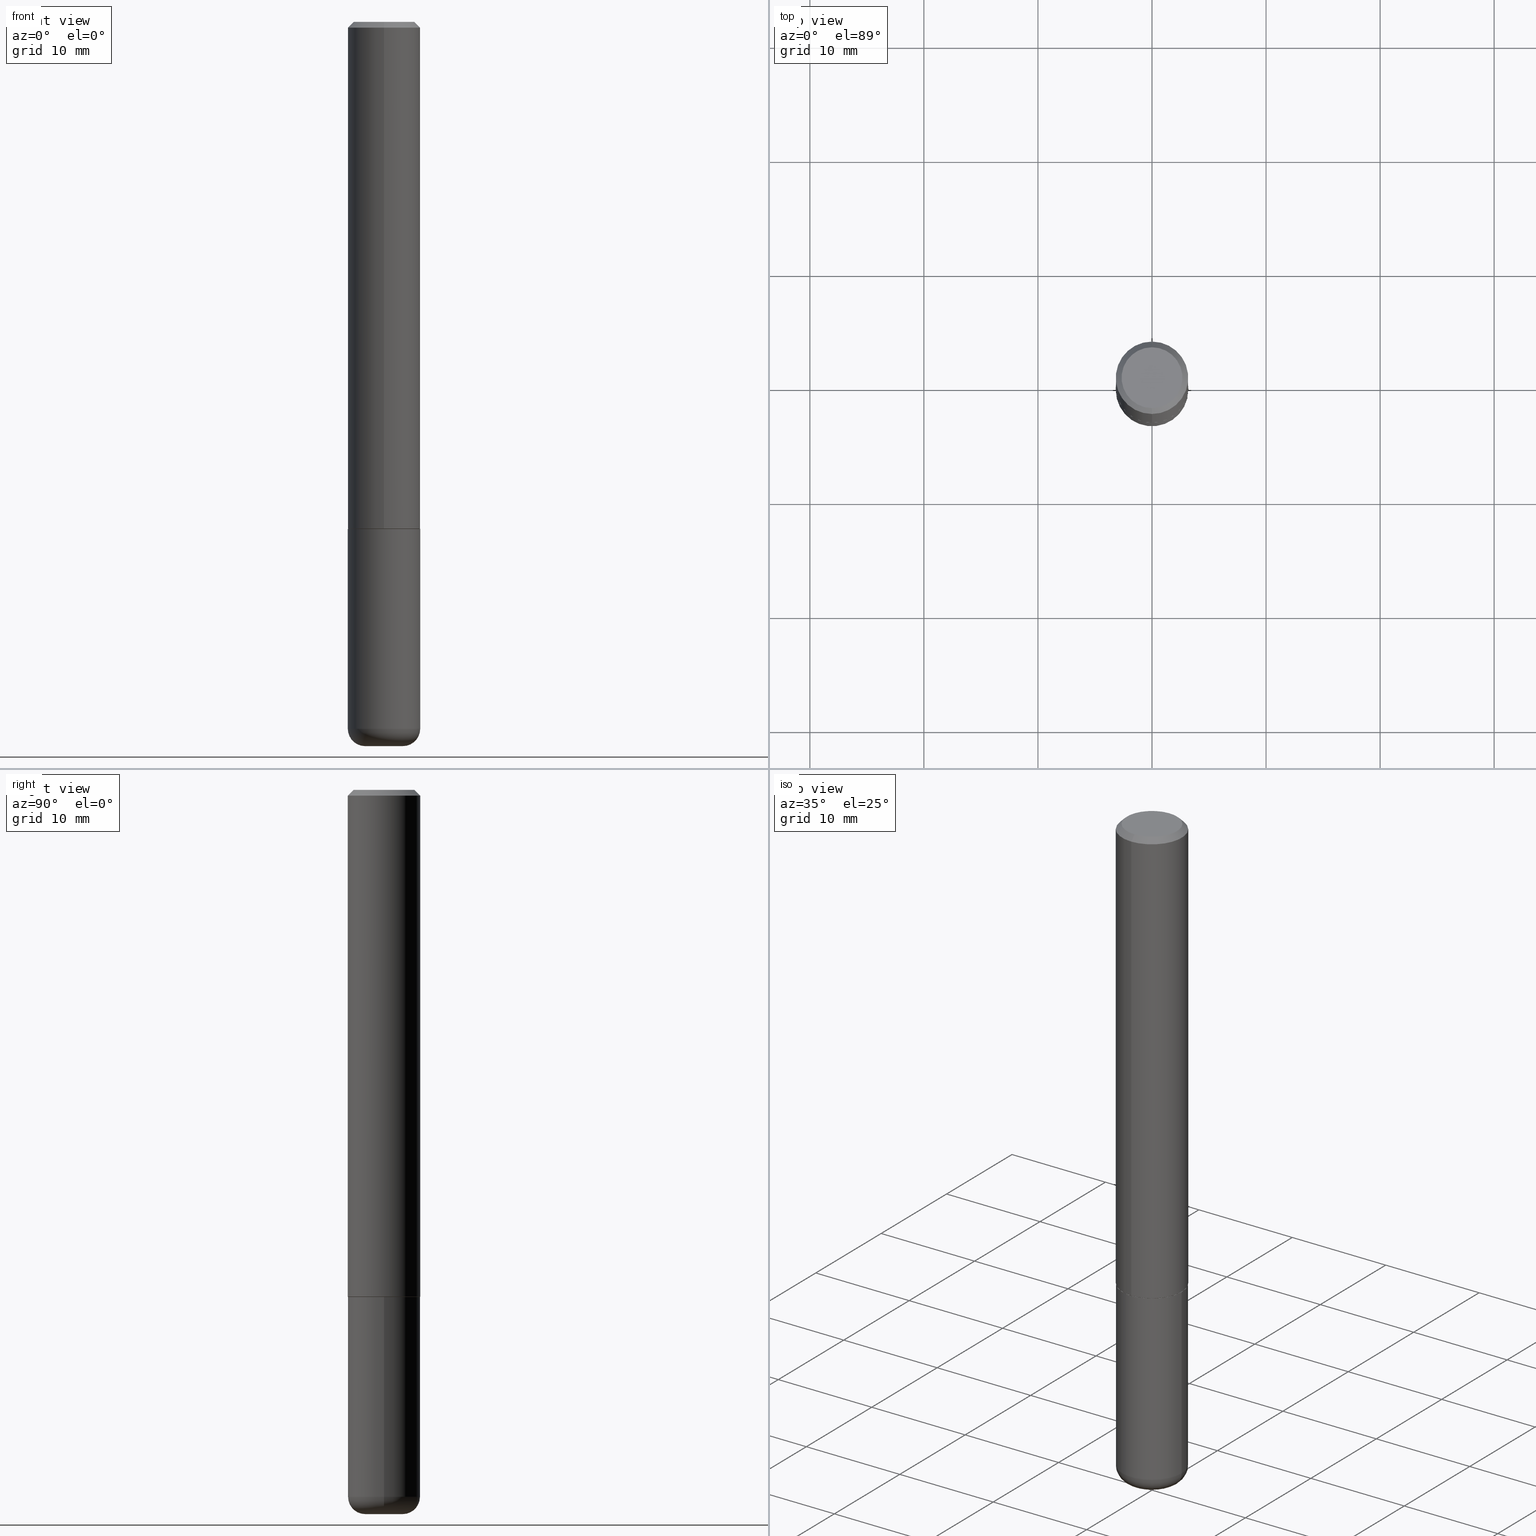
[diagram: canonical four-view strip — front | top / right | iso, engineering-drawing reading convention]
A machine part, canonical four-view strip (front | top / right | iso — engineering-drawing reading convention). The complete STEP part file that produces these views, byte-faithful:
ISO-10303-21;
HEADER;
FILE_DESCRIPTION (( 'STEP AP203' ),
    '1' );
FILE_NAME ('37438.STEP',
    '2024-03-02T01:25:38',
    ( '' ),
    ( '' ),
    'SwSTEP 2.0',
    'SolidWorks 2023',
    '' );
FILE_SCHEMA (( 'CONFIG_CONTROL_DESIGN' ));
ENDSEC;

DATA;
#1 = EDGE_LOOP ( 'NONE', ( #406, #387, #70, #188 ) ) ;
#2 = DIRECTION ( 'NONE',  ( 1.000000000000000000, 0.000000000000000000, 0.000000000000000000 ) ) ;
#3 = DIRECTION ( 'NONE',  ( -2.444769625519019670E-29, 3.492482605351917386E-15, 1.000000000000000000 ) ) ;
#4 = EDGE_LOOP ( 'NONE', ( #320, #88, #154, #69 ) ) ;
#5 =( NAMED_UNIT ( * ) PLANE_ANGLE_UNIT ( ) SI_UNIT ( $, .RADIAN. ) );
#6 = EDGE_CURVE ( 'NONE', #348, #399, #46, .T. ) ;
#7 = FACE_OUTER_BOUND ( 'NONE', #1, .T. ) ;
#8 = DIRECTION ( 'NONE',  ( -6.982962677686265922E-15, -1.000000000000000000, 4.406206441393973340E-15 ) ) ;
#9 = CONICAL_SURFACE ( 'NONE', #66, 0.1250000000000000000, 0.7853981633974471688 ) ;
#10 = ORIENTED_EDGE ( 'NONE', *, *, #151, .T. ) ;
#11 = FACE_OUTER_BOUND ( 'NONE', #130, .T. ) ;
#12 = ORIENTED_EDGE ( 'NONE', *, *, #404, .F. ) ;
#13 = LINE ( 'NONE', #262, #315 ) ;
#14 = ORIENTED_EDGE ( 'NONE', *, *, #151, .F. ) ;
#15 = ORIENTED_EDGE ( 'NONE', *, *, #321, .T. ) ;
#16 = AXIS2_PLACEMENT_3D ( 'NONE', #168, #34, #253 ) ;
#17 = DIRECTION ( 'NONE',  ( 2.444769625519019670E-29, -3.492482605351917386E-15, -1.000000000000000000 ) ) ;
#18 = ADVANCED_FACE ( 'NONE', ( #51 ), #153, .T. ) ;
#19 = CARTESIAN_POINT ( 'NONE',  ( 0.000000000000000000, 0.000000000000000000, 0.000000000000000000 ) ) ;
#20 = LINE ( 'NONE', #292, #271 ) ;
#21 = CALENDAR_DATE ( 2024, 1, 3 ) ;
#22 = AXIS2_PLACEMENT_3D ( 'NONE', #413, #344, #243 ) ;
#23 = AXIS2_PLACEMENT_3D ( 'NONE', #417, #126, #132 ) ;
#24 = DIRECTION ( 'NONE',  ( 1.000000000000000000, -6.982962677686262766E-15, 0.000000000000000000 ) ) ;
#25 = COORDINATED_UNIVERSAL_TIME_OFFSET ( 5, 0, .BEHIND. ) ;
#26 = ADVANCED_FACE ( 'NONE', ( #176 ), #328, .T. ) ;
#27 = ORIENTED_EDGE ( 'NONE', *, *, #55, .F. ) ;
#28 = DIRECTION ( 'NONE',  ( 6.982962677686265922E-15, 1.000000000000000000, -3.483106191921935554E-15 ) ) ;
#29 = APPROVAL_DATE_TIME ( #410, #358 ) ;
#30 = ORIENTED_EDGE ( 'NONE', *, *, #327, .F. ) ;
#31 = CC_DESIGN_PERSON_AND_ORGANIZATION_ASSIGNMENT ( #191, #354, ( #102 ) ) ;
#32 = DIRECTION ( 'NONE',  ( -2.445468806185136877E-29, 3.491481338843145188E-15, 1.000000000000000000 ) ) ;
#33 = CONICAL_SURFACE ( 'NONE', #73, 0.1239999999999999991, 0.7853981633975336552 ) ;
#34 = DIRECTION ( 'NONE',  ( -2.444769625519019670E-29, 3.492482605351917386E-15, 1.000000000000000000 ) ) ;
#35 = PERSON_AND_ORGANIZATION_ROLE ( 'classification_officer' ) ;
#36 = VERTEX_POINT ( 'NONE', #296 ) ;
#37 = PERSON_AND_ORGANIZATION ( #186, #48 ) ;
#38 = CARTESIAN_POINT ( 'NONE',  ( 2.501956864421970211E-45, -3.574177598218272952E-31, -1.023391667789888407E-16 ) ) ;
#39 = ORIENTED_EDGE ( 'NONE', *, *, #145, .F. ) ;
#40 = FACE_OUTER_BOUND ( 'NONE', #4, .T. ) ;
#41 = FACE_OUTER_BOUND ( 'NONE', #261, .T. ) ;
#42 = AXIS2_PLACEMENT_3D ( 'NONE', #142, #322, #361 ) ;
#43 = EDGE_LOOP ( 'NONE', ( #155, #10, #247, #27 ) ) ;
#44 = DIRECTION ( 'NONE',  ( -6.982962677686265922E-15, -1.000000000000000000, 4.406206441393973340E-15 ) ) ;
#45 = ORIENTED_EDGE ( 'NONE', *, *, #84, .F. ) ;
#46 = CIRCLE ( 'NONE', #347, 0.1050000000000001210 ) ;
#47 = ORIENTED_EDGE ( 'NONE', *, *, #199, .F. ) ;
#48 = ORGANIZATION ( 'UNSPECIFIED', 'UNSPECIFIED', '' ) ;
#49 = EDGE_CURVE ( 'NONE', #381, #162, #20, .T. ) ;
#50 = DIRECTION ( 'NONE',  ( -6.982962677686266711E-15, -1.000000000000000000, 3.492482605351917386E-15 ) ) ;
#51 = FACE_OUTER_BOUND ( 'NONE', #43, .T. ) ;
#52 = PERSON_AND_ORGANIZATION_ROLE ( 'creator' ) ;
#53 = APPROVAL_ROLE ( '' ) ;
#54 = ORIENTED_EDGE ( 'NONE', *, *, #411, .F. ) ;
#55 = EDGE_CURVE ( 'NONE', #399, #331, #144, .T. ) ;
#56 = DATE_AND_TIME ( #335, #58 ) ;
#57 = AXIS2_PLACEMENT_3D ( 'NONE', #266, #299, #24 ) ;
#58 = LOCAL_TIME ( 20, 25, 38.00000000000000000, #373 ) ;
#59 = CYLINDRICAL_SURFACE ( 'NONE', #197, 0.1250000000000001110 ) ;
#60 = CARTESIAN_POINT ( 'NONE',  ( 4.278346844658283722E-29, -6.111844559365854735E-15, -1.750000000000000000 ) ) ;
#61 = DIRECTION ( 'NONE',  ( -6.982962677686265922E-15, -1.000000000000000000, 3.483106191921935554E-15 ) ) ;
#62 = ORIENTED_EDGE ( 'NONE', *, *, #135, .F. ) ;
#63 = ORIENTED_EDGE ( 'NONE', *, *, #163, .T. ) ;
#64 = VECTOR ( 'NONE', #118, 39.37007874015748143 ) ;
#65 = CARTESIAN_POINT ( 'NONE',  ( -0.1250000000000000000, 8.881784197001252323E-16, -6.148668862818632227E-30 ) ) ;
#66 = AXIS2_PLACEMENT_3D ( 'NONE', #233, #305, #28 ) ;
#67 = CC_DESIGN_PERSON_AND_ORGANIZATION_ASSIGNMENT ( #37, #332, ( #94 ) ) ;
#68 = CARTESIAN_POINT ( 'NONE',  ( 0.1249999999999999861, -9.392084801488058387E-15, -2.440000000000000391 ) ) ;
#69 = ORIENTED_EDGE ( 'NONE', *, *, #170, .F. ) ;
#70 = ORIENTED_EDGE ( 'NONE', *, *, #93, .F. ) ;
#71 = CARTESIAN_POINT ( 'NONE',  ( 4.278346844658284843E-29, -6.111844559365856313E-15, -1.750000000000000222 ) ) ;
#72 = ORIENTED_EDGE ( 'NONE', *, *, #379, .T. ) ;
#73 = AXIS2_PLACEMENT_3D ( 'NONE', #198, #287, #44 ) ;
#74 = APPLICATION_CONTEXT ( 'configuration controlled 3d designs of mechanical parts and assemblies' ) ;
#75 = CARTESIAN_POINT ( 'NONE',  ( 7.332110811570587146E-16, 0.1050000000000001210, -4.178802569514461450E-16 ) ) ;
#76 = DIRECTION ( 'NONE',  ( 7.105427357601001859E-15, 1.000000000000000000, -3.491481338843145583E-15 ) ) ;
#77 = ORIENTED_EDGE ( 'NONE', *, *, #129, .T. ) ;
#78 = PRODUCT_DEFINITION_SHAPE ( 'NONE', 'NONE',  #111 ) ;
#79 = DIRECTION ( 'NONE',  ( -6.982962677686265133E-15, -1.000000000000000000, 4.370956789862812472E-15 ) ) ;
#80 = FACE_OUTER_BOUND ( 'NONE', #169, .T. ) ;
#81 = AXIS2_PLACEMENT_3D ( 'NONE', #60, #264, #407 ) ;
#82 = APPROVAL_PERSON_ORGANIZATION ( #414, #358, #340 ) ;
#83 = EDGE_LOOP ( 'NONE', ( #366, #277 ) ) ;
#84 = EDGE_CURVE ( 'NONE', #185, #310, #285, .T. ) ;
#85 = AXIS2_PLACEMENT_3D ( 'NONE', #249, #98, #152 ) ;
#86 = DIRECTION ( 'NONE',  ( -6.982962677686266711E-15, -1.000000000000000000, 3.491481338843145583E-15 ) ) ;
#87 = MANIFOLD_SOLID_BREP ( 'Body-Move/Copy2[1]', #220 ) ;
#88 = ORIENTED_EDGE ( 'NONE', *, *, #145, .T. ) ;
#89 = VERTEX_POINT ( 'NONE', #409 ) ;
#90 = CARTESIAN_POINT ( 'NONE',  ( 2.501956864421970211E-45, -3.574177598218272952E-31, -1.023391667789888407E-16 ) ) ;
#91 = PERSON_AND_ORGANIZATION ( #186, #48 ) ;
#92 = AXIS2_PLACEMENT_3D ( 'NONE', #269, #238, #400 ) ;
#93 = EDGE_CURVE ( 'NONE', #36, #165, #225, .T. ) ;
#94 = PRODUCT ( '37438', '37438', '', ( #317 ) ) ;
#95 = AXIS2_PLACEMENT_3D ( 'NONE', #374, #336, #301 ) ;
#96 = DIRECTION ( 'NONE',  ( -2.444769625519019670E-29, 3.492482605351917386E-15, 1.000000000000000000 ) ) ;
#97 = CC_DESIGN_DATE_AND_TIME_ASSIGNMENT ( #309, #276, ( #111 ) ) ;
#98 = DIRECTION ( 'NONE',  ( -2.445468806185136597E-29, 3.491481338843145583E-15, 1.000000000000000000 ) ) ;
#99 = DIRECTION ( 'NONE',  ( 1.000000000000000000, -6.982962677686266711E-15, 4.876176775795935793E-29 ) ) ;
#100 = ORIENTED_EDGE ( 'NONE', *, *, #129, .F. ) ;
#101 = VECTOR ( 'NONE', #228, 39.37007874015748143 ) ;
#102 = PRODUCT_DEFINITION_FORMATION_WITH_SPECIFIED_SOURCE ( 'ANY', '', #94, .NOT_KNOWN. ) ;
#103 = CARTESIAN_POINT ( 'NONE',  ( 4.278346844658283722E-29, -6.111844559365854735E-15, -1.750000000000000000 ) ) ;
#104 = COORDINATED_UNIVERSAL_TIME_OFFSET ( 5, 0, .BEHIND. ) ;
#105 = DIRECTION ( 'NONE',  ( -2.445468806185136877E-29, 3.491481338843145188E-15, 1.000000000000000000 ) ) ;
#106 = CC_DESIGN_PERSON_AND_ORGANIZATION_ASSIGNMENT ( #91, #391, ( #102 ) ) ;
#107 = DIRECTION ( 'NONE',  ( -2.445468806185136597E-29, 3.491481338843145583E-15, 1.000000000000000000 ) ) ;
#108 = ORIENTED_EDGE ( 'NONE', *, *, #175, .F. ) ;
#109 = SECURITY_CLASSIFICATION ( '', '', #216 ) ;
#110 = EDGE_LOOP ( 'NONE', ( #384, #256, #397, #143 ) ) ;
#111 = PRODUCT_DEFINITION ( 'UNKNOWN', '', #102, #275 ) ;
#112 = ORIENTED_EDGE ( 'NONE', *, *, #199, .T. ) ;
#113 = CARTESIAN_POINT ( 'NONE',  ( 6.113672015462842613E-29, -8.728703347107864943E-15, -2.500000000000000000 ) ) ;
#114 = CYLINDRICAL_SURFACE ( 'NONE', #412, 0.1250000000000000000 ) ;
#115 = VERTEX_POINT ( 'NONE', #259 ) ;
#116 = ORIENTED_EDGE ( 'NONE', *, *, #343, .T. ) ;
#117 = FACE_OUTER_BOUND ( 'NONE', #83, .T. ) ;
#118 = DIRECTION ( 'NONE',  ( 4.937700262164541731E-15, 0.7071067811865442421, -0.7071067811865507924 ) ) ;
#119 = APPROVAL_DATE_TIME ( #56, #365 ) ;
#120 = AXIS2_PLACEMENT_3D ( 'NONE', #359, #136, #190 ) ;
#121 = VECTOR ( 'NONE', #318, 39.37007874015748143 ) ;
#122 =( GEOMETRIC_REPRESENTATION_CONTEXT ( 3 ) GLOBAL_UNCERTAINTY_ASSIGNED_CONTEXT ( ( #241 ) ) GLOBAL_UNIT_ASSIGNED_CONTEXT ( ( #349, #5, #283 ) ) REPRESENTATION_CONTEXT ( 'NONE', 'WORKASPACE' ) );
#123 = FACE_OUTER_BOUND ( 'NONE', #362, .T. ) ;
#124 = ADVANCED_FACE ( 'NONE', ( #339 ), #59, .T. ) ;
#125 = CARTESIAN_POINT ( 'NONE',  ( -0.1250000000000000000, -6.426474985176265022E-15, -1.750000000000000222 ) ) ;
#126 = DIRECTION ( 'NONE',  ( -2.445468806185136597E-29, 3.491481338843145583E-15, 1.000000000000000000 ) ) ;
#127 = CARTESIAN_POINT ( 'NONE',  ( 8.846257060213681156E-16, 0.1239999999999938790, -1.750000000000000444 ) ) ;
#128 = AXIS2_PLACEMENT_3D ( 'NONE', #352, #107, #313 ) ;
#129 = EDGE_CURVE ( 'NONE', #288, #331, #180, .T. ) ;
#130 = EDGE_LOOP ( 'NONE', ( #12, #304, #244, #54 ) ) ;
#131 = CARTESIAN_POINT ( 'NONE',  ( 8.881784197001479121E-16, 0.1249999999999941019, -1.749000000000000332 ) ) ;
#132 = DIRECTION ( 'NONE',  ( 1.000000000000000000, -6.982962677686262766E-15, 0.000000000000000000 ) ) ;
#133 = AXIS2_PLACEMENT_3D ( 'NONE', #71, #302, #325 ) ;
#134 = DIRECTION ( 'NONE',  ( -6.982962677686265133E-15, -1.000000000000000000, 3.492482605351917386E-15 ) ) ;
#135 = EDGE_CURVE ( 'NONE', #115, #185, #390, .T. ) ;
#136 = DIRECTION ( 'NONE',  ( -2.445468806185136597E-29, 3.491481338843145583E-15, 1.000000000000000000 ) ) ;
#137 = PRODUCT_RELATED_PRODUCT_CATEGORY ( 'detail', '', ( #94 ) ) ;
#138 = AXIS2_PLACEMENT_3D ( 'NONE', #284, #389, #221 ) ;
#139 = LOCAL_TIME ( 20, 25, 38.00000000000000000, #206 ) ;
#140 = CARTESIAN_POINT ( 'NONE',  ( 8.881784197001260212E-16, 0.1250000000000001110, -4.365603256689900677E-16 ) ) ;
#141 = DIRECTION ( 'NONE',  ( -4.937700262164969294E-15, -0.7071067811866054154, 0.7071067811864896191 ) ) ;
#142 = CARTESIAN_POINT ( 'NONE',  ( 0.000000000000000000, 0.000000000000000000, 0.000000000000000000 ) ) ;
#143 = ORIENTED_EDGE ( 'NONE', *, *, #245, .F. ) ;
#144 = LINE ( 'NONE', #227, #64 ) ;
#145 = EDGE_CURVE ( 'NONE', #89, #115, #286, .T. ) ;
#146 = PERSON_AND_ORGANIZATION ( #186, #48 ) ;
#147 = DIRECTION ( 'NONE',  ( 2.438088387897960049E-29, -3.491481338843145188E-15, -1.000000000000000000 ) ) ;
#148 = DIRECTION ( 'NONE',  ( -2.444769625519019670E-29, 3.492482605351917386E-15, 1.000000000000000000 ) ) ;
#149 = SHAPE_DEFINITION_REPRESENTATION ( #78, #403 ) ;
#150 = DIRECTION ( 'NONE',  ( -1.000000000000000000, 7.105427357600995548E-15, 0.000000000000000000 ) ) ;
#151 = EDGE_CURVE ( 'NONE', #348, #372, #415, .T. ) ;
#152 = DIRECTION ( 'NONE',  ( 1.000000000000000000, -6.982962677686262766E-15, 0.000000000000000000 ) ) ;
#153 = CONICAL_SURFACE ( 'NONE', #307, 0.1250000000000000000, 0.7853981633974471688 ) ;
#154 = ORIENTED_EDGE ( 'NONE', *, *, #135, .T. ) ;
#155 = ORIENTED_EDGE ( 'NONE', *, *, #6, .F. ) ;
#156 = CLOSED_SHELL ( 'NONE', ( #385, #124, #18, #392, #229, #237, #187, #291 ) ) ;
#157 = DIRECTION ( 'NONE',  ( 0.000000000000000000, 0.000000000000000000, 1.000000000000000000 ) ) ;
#158 = CIRCLE ( 'NONE', #231, 0.1250000000000002498 ) ;
#159 = CARTESIAN_POINT ( 'NONE',  ( 0.1250000000000000000, -8.728703347107833388E-16, 6.095220969744919741E-30 ) ) ;
#160 = CALENDAR_DATE ( 2024, 1, 3 ) ;
#161 = CARTESIAN_POINT ( 'NONE',  ( 8.728703347107837333E-16, 0.1249999999999999306, -0.02000000000000046185 ) ) ;
#162 = VERTEX_POINT ( 'NONE', #214 ) ;
#163 = EDGE_CURVE ( 'NONE', #331, #372, #252, .T. ) ;
#164 = CARTESIAN_POINT ( 'NONE',  ( 0.000000000000000000, 0.000000000000000000, 0.000000000000000000 ) ) ;
#165 = VERTEX_POINT ( 'NONE', #125 ) ;
#166 = DIRECTION ( 'NONE',  ( 2.444769625519019109E-29, -3.492482605351917386E-15, -1.000000000000000000 ) ) ;
#167 = ORIENTED_EDGE ( 'NONE', *, *, #49, .F. ) ;
#168 = CARTESIAN_POINT ( 'NONE',  ( 4.278346844658283722E-29, -6.111844559365854735E-15, -1.750000000000000000 ) ) ;
#169 = EDGE_LOOP ( 'NONE', ( #112, #370 ) ) ;
#170 = EDGE_CURVE ( 'NONE', #310, #185, #398, .T. ) ;
#171 = ORIENTED_EDGE ( 'NONE', *, *, #327, .T. ) ;
#172 = APPROVAL_PERSON_ORGANIZATION ( #146, #365, #235 ) ;
#173 = DIRECTION ( 'NONE',  ( -1.000000000000000000, 6.982962677686265922E-15, -4.876176775795935793E-29 ) ) ;
#174 = DIRECTION ( 'NONE',  ( -2.445468806185136597E-29, 3.491481338843145583E-15, 1.000000000000000000 ) ) ;
#175 = EDGE_CURVE ( 'NONE', #372, #331, #329, .T. ) ;
#176 = FACE_OUTER_BOUND ( 'NONE', #360, .T. ) ;
#177 = DIRECTION ( 'NONE',  ( -6.982962677686265133E-15, -1.000000000000000000, 4.370956789862812472E-15 ) ) ;
#178 = CARTESIAN_POINT ( 'NONE',  ( 4.889539251038044560E-31, -6.984965210703842315E-17, -0.02000000000000002470 ) ) ;
#179 = LOCAL_TIME ( 20, 25, 38.00000000000000000, #380 ) ;
#180 = LINE ( 'NONE', #140, #101 ) ;
#181 = DIMENSIONAL_EXPONENTS ( 1.000000000000000000, 0.000000000000000000, 0.000000000000000000, 0.000000000000000000, 0.000000000000000000, 0.000000000000000000, 0.000000000000000000 ) ;
#182 = CIRCLE ( 'NONE', #368, 0.1250000000000002498 ) ;
#183 = ORIENTED_EDGE ( 'NONE', *, *, #204, .T. ) ;
#184 = LOCAL_TIME ( 20, 25, 38.00000000000000000, #104 ) ;
#185 = VERTEX_POINT ( 'NONE', #68 ) ;
#186 = PERSON ( 'UNSPECIFIED', 'UNSPECIFIED', 'UNSPECIFIED', ('UNSPECIFIED'), ('UNSPECIFIED'), ('UNSPECIFIED') ) ;
#187 = ADVANCED_FACE ( 'NONE', ( #217 ), #351, .F. ) ;
#188 = ORIENTED_EDGE ( 'NONE', *, *, #226, .F. ) ;
#189 = APPLICATION_PROTOCOL_DEFINITION ( 'international standard', 'config_control_design', 1994, #293 ) ;
#190 = DIRECTION ( 'NONE',  ( 1.000000000000000000, -6.982962677686265133E-15, 4.883557194083112340E-29 ) ) ;
#191 = PERSON_AND_ORGANIZATION ( #186, #48 ) ;
#192 = CIRCLE ( 'NONE', #353, 0.1239999999999999991 ) ;
#193 = CARTESIAN_POINT ( 'NONE',  ( -8.728703347107841277E-16, -0.1250000000000001110, 4.365603256689900677E-16 ) ) ;
#194 = ADVANCED_FACE ( 'NONE', ( #11 ), #251, .T. ) ;
#195 = DIRECTION ( 'NONE',  ( -2.445468806185136597E-29, 3.491481338843145583E-15, 1.000000000000000000 ) ) ;
#196 = DIRECTION ( 'NONE',  ( -2.445468806185136597E-29, 3.491481338843145583E-15, 1.000000000000000000 ) ) ;
#197 = AXIS2_PLACEMENT_3D ( 'NONE', #19, #263, #50 ) ;
#198 = CARTESIAN_POINT ( 'NONE',  ( 4.278346844658283722E-29, -6.111844559365854735E-15, -1.750000000000000000 ) ) ;
#199 = EDGE_CURVE ( 'NONE', #399, #348, #215, .T. ) ;
#200 = ORIENTED_EDGE ( 'NONE', *, *, #333, .F. ) ;
#201 = AXIS2_PLACEMENT_3D ( 'NONE', #38, #3, #134 ) ;
#202 = LOCAL_TIME ( 20, 25, 38.00000000000000000, #25 ) ;
#203 = DIRECTION ( 'NONE',  ( 1.000000000000000000, -6.982962677686272233E-15, 0.000000000000000000 ) ) ;
#204 = EDGE_CURVE ( 'NONE', #381, #416, #258, .T. ) ;
#205 = FACE_OUTER_BOUND ( 'NONE', #224, .T. ) ;
#206 = COORDINATED_UNIVERSAL_TIME_OFFSET ( 5, 0, .BEHIND. ) ;
#207 = ORIENTED_EDGE ( 'NONE', *, *, #55, .T. ) ;
#208 = DIRECTION ( 'NONE',  ( -6.982962677686265133E-15, -1.000000000000000000, 3.492482605351917386E-15 ) ) ;
#209 = CARTESIAN_POINT ( 'NONE',  ( -8.658873720330540358E-16, -0.1240000000000061053, -1.749999999999999334 ) ) ;
#210 = AXIS2_PLACEMENT_3D ( 'NONE', #164, #195, #319 ) ;
#211 = ORIENTED_EDGE ( 'NONE', *, *, #333, .T. ) ;
#212 = ADVANCED_FACE ( 'NONE', ( #7 ), #114, .T. ) ;
#213 = CARTESIAN_POINT ( 'NONE',  ( -8.575622497214408537E-16, -0.1250000000000000555, -0.01999999999999959102 ) ) ;
#214 = CARTESIAN_POINT ( 'NONE',  ( -8.728703347107422194E-16, -0.1250000000000063560, -1.748999999999999222 ) ) ;
#215 = CIRCLE ( 'NONE', #201, 0.1050000000000001210 ) ;
#216 = SECURITY_CLASSIFICATION_LEVEL ( 'unclassified' ) ;
#217 = FACE_OUTER_BOUND ( 'NONE', #346, .T. ) ;
#218 = CARTESIAN_POINT ( 'NONE',  ( 0.000000000000000000, 0.000000000000000000, 0.000000000000000000 ) ) ;
#219 = ADVANCED_FACE ( 'NONE', ( #40 ), #405, .T. ) ;
#220 = CLOSED_SHELL ( 'NONE', ( #212, #260, #395, #194, #219, #26 ) ) ;
#221 = DIRECTION ( 'NONE',  ( 1.000000000000000000, -6.982962677686273810E-15, 0.000000000000000000 ) ) ;
#222 = DIRECTION ( 'NONE',  ( -2.444769625519019670E-29, 3.492482605351917386E-15, 1.000000000000000000 ) ) ;
#223 = DIRECTION ( 'NONE',  ( 6.982962677686265922E-15, 1.000000000000000000, -3.492482605351917386E-15 ) ) ;
#224 = EDGE_LOOP ( 'NONE', ( #183, #15, #326, #167 ) ) ;
#225 = CIRCLE ( 'NONE', #92, 0.1250000000000000000 ) ;
#226 = EDGE_CURVE ( 'NONE', #185, #36, #393, .T. ) ;
#227 = CARTESIAN_POINT ( 'NONE',  ( 8.728703347107837333E-16, 0.1249999999999999306, -0.02000000000000046185 ) ) ;
#228 = DIRECTION ( 'NONE',  ( -2.444769625519019670E-29, 3.492482605351917386E-15, 1.000000000000000000 ) ) ;
#229 = ADVANCED_FACE ( 'NONE', ( #289 ), #281, .T. ) ;
#230 = CARTESIAN_POINT ( 'NONE',  ( -0.1249999999999999861, -7.631036047077151393E-15, -2.440000000000000391 ) ) ;
#231 = AXIS2_PLACEMENT_3D ( 'NONE', #394, #222, #79 ) ;
#232 = DIRECTION ( 'NONE',  ( 6.982962677686265922E-15, 1.000000000000000000, -3.483106191921935554E-15 ) ) ;
#233 = CARTESIAN_POINT ( 'NONE',  ( 4.889539251038044560E-31, -6.984965210703842315E-17, -0.02000000000000002470 ) ) ;
#234 = ORIENTED_EDGE ( 'NONE', *, *, #245, .T. ) ;
#235 = APPROVAL_ROLE ( '' ) ;
#236 = PLANE ( 'NONE',  #95 ) ;
#237 = ADVANCED_FACE ( 'NONE', ( #254 ), #33, .T. ) ;
#238 = DIRECTION ( 'NONE',  ( -2.445468806185136597E-29, 3.491481338843145583E-15, 1.000000000000000000 ) ) ;
#239 = CIRCLE ( 'NONE', #23, 0.1250000000000000000 ) ;
#240 = DIRECTION ( 'NONE',  ( -4.851104656540957964E-15, -0.7071067811865491270, -0.7071067811865459074 ) ) ;
#241 = UNCERTAINTY_MEASURE_WITH_UNIT (LENGTH_MEASURE( 1.000000000000000082E-05 ), #349, 'distance_accuracy_value', 'NONE');
#242 = APPROVAL_STATUS ( 'not_yet_approved' ) ;
#243 = DIRECTION ( 'NONE',  ( -6.982962677686265922E-15, -1.000000000000000000, 3.483106191921935554E-15 ) ) ;
#244 = ORIENTED_EDGE ( 'NONE', *, *, #226, .T. ) ;
#245 = EDGE_CURVE ( 'NONE', #288, #162, #158, .T. ) ;
#246 = CARTESIAN_POINT ( 'NONE',  ( 4.889539251038044560E-31, -6.984965210703842315E-17, -0.02000000000000002470 ) ) ;
#247 = ORIENTED_EDGE ( 'NONE', *, *, #175, .T. ) ;
#248 = APPROVAL_PERSON_ORGANIZATION ( #396, #280, #53 ) ;
#249 = CARTESIAN_POINT ( 'NONE',  ( 5.966943887091733341E-29, -8.519214466777275048E-15, -2.440000000000000391 ) ) ;
#250 = DIRECTION ( 'NONE',  ( -2.444769625519019670E-29, 3.492482605351917386E-15, 1.000000000000000000 ) ) ;
#251 = CYLINDRICAL_SURFACE ( 'NONE', #210, 0.1250000000000000000 ) ;
#252 = CIRCLE ( 'NONE', #278, 0.1250000000000000000 ) ;
#253 = DIRECTION ( 'NONE',  ( -6.982962677686265922E-15, -1.000000000000000000, 4.406206441393973340E-15 ) ) ;
#254 = FACE_OUTER_BOUND ( 'NONE', #110, .T. ) ;
#255 = DATE_TIME_ROLE ( 'classification_date' ) ;
#256 = ORIENTED_EDGE ( 'NONE', *, *, #306, .T. ) ;
#257 = AXIS2_PLACEMENT_3D ( 'NONE', #113, #147, #173 ) ;
#258 = CIRCLE ( 'NONE', #16, 0.1239999999999999991 ) ;
#259 = CARTESIAN_POINT ( 'NONE',  ( 0.06500000000000000222, -9.182595921157471648E-15, -2.500000000000000000 ) ) ;
#260 = ADVANCED_FACE ( 'NONE', ( #41 ), #297, .T. ) ;
#261 = EDGE_LOOP ( 'NONE', ( #211, #116, #45, #62 ) ) ;
#262 = CARTESIAN_POINT ( 'NONE',  ( 8.810729923425669213E-16, 0.1239999999999938790, -1.750000000000000444 ) ) ;
#263 = DIRECTION ( 'NONE',  ( -2.444769625519019670E-29, 3.492482605351917386E-15, 1.000000000000000000 ) ) ;
#264 = DIRECTION ( 'NONE',  ( -2.444769625519019670E-29, 3.492482605351917386E-15, 1.000000000000000000 ) ) ;
#265 = CONICAL_SURFACE ( 'NONE', #81, 0.1239999999999999991, 0.7853981633975336552 ) ;
#266 = CARTESIAN_POINT ( 'NONE',  ( 5.966943887091733341E-29, -8.519214466777275048E-15, -2.440000000000000391 ) ) ;
#267 = APPROVAL_STATUS ( 'not_yet_approved' ) ;
#268 = CALENDAR_DATE ( 2024, 1, 3 ) ;
#269 = CARTESIAN_POINT ( 'NONE',  ( 4.279570410823989044E-29, -6.110092342975505460E-15, -1.750000000000000222 ) ) ;
#270 = CARTESIAN_POINT ( 'NONE',  ( -7.889572697437263111E-16, -0.1050000000000001210, 2.643715067829629270E-16 ) ) ;
#271 = VECTOR ( 'NONE', #141, 39.37007874015748143 ) ;
#272 = VECTOR ( 'NONE', #105, 39.37007874015748143 ) ;
#273 = CC_DESIGN_APPROVAL ( #358, ( #111 ) ) ;
#274 = APPLICATION_PROTOCOL_DEFINITION ( 'international standard', 'config_control_design', 1994, #74 ) ;
#275 = DESIGN_CONTEXT ( 'detailed design', #74, 'design' ) ;
#276 = DATE_TIME_ROLE ( 'creation_date' ) ;
#277 = ORIENTED_EDGE ( 'NONE', *, *, #411, .T. ) ;
#278 = AXIS2_PLACEMENT_3D ( 'NONE', #246, #96, #61 ) ;
#279 = ORIENTED_EDGE ( 'NONE', *, *, #163, .F. ) ;
#280 = APPROVAL ( #242, 'UNSPECIFIED' ) ;
#281 = CYLINDRICAL_SURFACE ( 'NONE', #42, 0.1250000000000001110 ) ;
#282 = DATE_AND_TIME ( #160, #184 ) ;
#283 =( NAMED_UNIT ( * ) SI_UNIT ( $, .STERADIAN. ) SOLID_ANGLE_UNIT ( ) );
#284 = CARTESIAN_POINT ( 'NONE',  ( 6.113672015462842613E-29, -8.728703347107864943E-15, -2.500000000000000000 ) ) ;
#285 = CIRCLE ( 'NONE', #57, 0.1250000000000000000 ) ;
#286 = CIRCLE ( 'NONE', #337, 0.06500000000000000222 ) ;
#287 = DIRECTION ( 'NONE',  ( -2.444769625519019670E-29, 3.492482605351917386E-15, 1.000000000000000000 ) ) ;
#288 = VERTEX_POINT ( 'NONE', #131 ) ;
#289 = FACE_OUTER_BOUND ( 'NONE', #357, .T. ) ;
#290 = AXIS2_PLACEMENT_3D ( 'NONE', #75, #166, #223 ) ;
#291 = ADVANCED_FACE ( 'NONE', ( #80 ), #401, .F. ) ;
#292 = CARTESIAN_POINT ( 'NONE',  ( -8.658873720330540358E-16, -0.1240000000000061053, -1.749999999999999334 ) ) ;
#293 = APPLICATION_CONTEXT ( 'configuration controlled 3d designs of mechanical parts and assemblies' ) ;
#294 = DIRECTION ( 'NONE',  ( 1.000000000000000000, -6.982962677686273810E-15, 0.000000000000000000 ) ) ;
#295 = CARTESIAN_POINT ( 'NONE',  ( -8.575622497214408537E-16, -0.1250000000000000555, -0.01999999999999959102 ) ) ;
#296 = CARTESIAN_POINT ( 'NONE',  ( 0.1250000000000000000, -6.982962677686288010E-15, -1.750000000000000222 ) ) ;
#297 = TOROIDAL_SURFACE ( 'NONE', #128, 0.06500000000000000222, 0.05999999999999995615 ) ;
#298 = CC_DESIGN_APPROVAL ( #280, ( #109 ) ) ;
#299 = DIRECTION ( 'NONE',  ( -2.445468806185136597E-29, 3.491481338843145583E-15, 1.000000000000000000 ) ) ;
#300 = CC_DESIGN_PERSON_AND_ORGANIZATION_ASSIGNMENT ( #314, #35, ( #109 ) ) ;
#301 = DIRECTION ( 'NONE',  ( -1.000000000000000000, 6.982962677686265922E-15, -4.876176775795935793E-29 ) ) ;
#302 = DIRECTION ( 'NONE',  ( -2.444769625519019109E-29, 3.492482605351917386E-15, 1.000000000000000000 ) ) ;
#303 = APPROVAL_STATUS ( 'not_yet_approved' ) ;
#304 = ORIENTED_EDGE ( 'NONE', *, *, #170, .T. ) ;
#305 = DIRECTION ( 'NONE',  ( 2.444769625519019670E-29, -3.492482605351917386E-15, -1.000000000000000000 ) ) ;
#306 = EDGE_CURVE ( 'NONE', #416, #381, #192, .T. ) ;
#307 = AXIS2_PLACEMENT_3D ( 'NONE', #178, #17, #232 ) ;
#308 = AXIS2_PLACEMENT_3D ( 'NONE', #356, #76, #150 ) ;
#309 = DATE_AND_TIME ( #21, #202 ) ;
#310 = VERTEX_POINT ( 'NONE', #230 ) ;
#311 = CC_DESIGN_PERSON_AND_ORGANIZATION_ASSIGNMENT ( #345, #52, ( #111 ) ) ;
#312 = CARTESIAN_POINT ( 'NONE',  ( 0.000000000000000000, 0.000000000000000000, 0.000000000000000000 ) ) ;
#313 = DIRECTION ( 'NONE',  ( 1.000000000000000000, -6.982962677686265133E-15, 4.883557194083112340E-29 ) ) ;
#314 = PERSON_AND_ORGANIZATION ( #186, #48 ) ;
#315 = VECTOR ( 'NONE', #369, 39.37007874015748143 ) ;
#316 = ORIENTED_EDGE ( 'NONE', *, *, #204, .F. ) ;
#317 = MECHANICAL_CONTEXT ( 'NONE', #293, 'mechanical' ) ;
#318 = DIRECTION ( 'NONE',  ( -2.444769625519019670E-29, 3.492482605351917386E-15, 1.000000000000000000 ) ) ;
#319 = DIRECTION ( 'NONE',  ( 1.000000000000000000, -6.982962677686266711E-15, 4.876176775795935793E-29 ) ) ;
#320 = ORIENTED_EDGE ( 'NONE', *, *, #343, .F. ) ;
#321 = EDGE_CURVE ( 'NONE', #416, #288, #13, .T. ) ;
#322 = DIRECTION ( 'NONE',  ( -2.444769625519019670E-29, 3.492482605351917386E-15, 1.000000000000000000 ) ) ;
#323 = VECTOR ( 'NONE', #32, 39.37007874015748143 ) ;
#324 = AXIS2_PLACEMENT_3D ( 'NONE', #312, #157, #2 ) ;
#325 = DIRECTION ( 'NONE',  ( -6.982962677686265922E-15, -1.000000000000000000, 3.492482605351917386E-15 ) ) ;
#326 = ORIENTED_EDGE ( 'NONE', *, *, #379, .F. ) ;
#327 = EDGE_CURVE ( 'NONE', #162, #372, #386, .T. ) ;
#328 = PLANE ( 'NONE',  #257 ) ;
#329 = CIRCLE ( 'NONE', #22, 0.1250000000000000000 ) ;
#330 = CARTESIAN_POINT ( 'NONE',  ( 6.113672015462842613E-29, -8.728703347107864943E-15, -2.500000000000000000 ) ) ;
#331 = VERTEX_POINT ( 'NONE', #161 ) ;
#332 = PERSON_AND_ORGANIZATION_ROLE ( 'design_owner' ) ;
#333 = EDGE_CURVE ( 'NONE', #115, #89, #383, .T. ) ;
#334 = EDGE_LOOP ( 'NONE', ( #72, #77, #108, #30 ) ) ;
#335 = CALENDAR_DATE ( 2024, 1, 3 ) ;
#336 = DIRECTION ( 'NONE',  ( 2.438088387897960049E-29, -3.491481338843145188E-15, -1.000000000000000000 ) ) ;
#337 = AXIS2_PLACEMENT_3D ( 'NONE', #330, #174, #294 ) ;
#338 = CC_DESIGN_SECURITY_CLASSIFICATION ( #109, ( #102 ) ) ;
#339 = FACE_OUTER_BOUND ( 'NONE', #334, .T. ) ;
#340 = APPROVAL_ROLE ( '' ) ;
#341 = CARTESIAN_POINT ( 'NONE',  ( 4.275902075032765006E-29, -6.108352076760502035E-15, -1.748999999999999888 ) ) ;
#342 = MANIFOLD_SOLID_BREP ( 'Body-Move/Copy2[2]', #156 ) ;
#343 = EDGE_CURVE ( 'NONE', #89, #310, #378, .T. ) ;
#344 = DIRECTION ( 'NONE',  ( -2.444769625519019670E-29, 3.492482605351917386E-15, 1.000000000000000000 ) ) ;
#345 = PERSON_AND_ORGANIZATION ( #186, #48 ) ;
#346 = EDGE_LOOP ( 'NONE', ( #316, #376 ) ) ;
#347 = AXIS2_PLACEMENT_3D ( 'NONE', #90, #402, #208 ) ;
#348 = VERTEX_POINT ( 'NONE', #270 ) ;
#349 =( CONVERSION_BASED_UNIT ( 'INCH', #382 ) LENGTH_UNIT ( ) NAMED_UNIT ( #181 ) );
#350 =( LENGTH_UNIT ( ) NAMED_UNIT ( * ) SI_UNIT ( $, .METRE. ) );
#351 = PLANE ( 'NONE',  #133 ) ;
#352 = CARTESIAN_POINT ( 'NONE',  ( 5.966943887091733341E-29, -8.519214466777275048E-15, -2.440000000000000391 ) ) ;
#353 = AXIS2_PLACEMENT_3D ( 'NONE', #103, #250, #8 ) ;
#354 = PERSON_AND_ORGANIZATION_ROLE ( 'design_supplier' ) ;
#355 = AXIS2_PLACEMENT_3D ( 'NONE', #367, #86, #203 ) ;
#356 = CARTESIAN_POINT ( 'NONE',  ( -0.06500000000000000222, -8.057361688533210306E-15, -2.440000000000000391 ) ) ;
#357 = EDGE_LOOP ( 'NONE', ( #100, #234, #171, #279 ) ) ;
#358 = APPROVAL ( #303, 'UNSPECIFIED' ) ;
#359 = CARTESIAN_POINT ( 'NONE',  ( 5.966943887091733341E-29, -8.519214466777275048E-15, -2.440000000000000391 ) ) ;
#360 = EDGE_LOOP ( 'NONE', ( #200, #39 ) ) ;
#361 = DIRECTION ( 'NONE',  ( -6.982962677686266711E-15, -1.000000000000000000, 3.492482605351917386E-15 ) ) ;
#362 = EDGE_LOOP ( 'NONE', ( #14, #47, #207, #63 ) ) ;
#363 = VECTOR ( 'NONE', #240, 39.37007874015748143 ) ;
#364 = CC_DESIGN_APPROVAL ( #365, ( #102 ) ) ;
#365 = APPROVAL ( #267, 'UNSPECIFIED' ) ;
#366 = ORIENTED_EDGE ( 'NONE', *, *, #93, .T. ) ;
#367 = CARTESIAN_POINT ( 'NONE',  ( 0.06500000000000000222, -8.973107040826881753E-15, -2.440000000000000391 ) ) ;
#368 = AXIS2_PLACEMENT_3D ( 'NONE', #341, #148, #177 ) ;
#369 = DIRECTION ( 'NONE',  ( 5.024295867788490741E-15, 0.7071067811866103003, 0.7071067811864847341 ) ) ;
#370 = ORIENTED_EDGE ( 'NONE', *, *, #6, .T. ) ;
#371 = CC_DESIGN_DATE_AND_TIME_ASSIGNMENT ( #282, #255, ( #109 ) ) ;
#372 = VERTEX_POINT ( 'NONE', #295 ) ;
#373 = COORDINATED_UNIVERSAL_TIME_OFFSET ( 5, 0, .BEHIND. ) ;
#374 = CARTESIAN_POINT ( 'NONE',  ( 4.279570410823989044E-29, -6.110092342975505460E-15, -1.750000000000000222 ) ) ;
#375 = APPROVAL_DATE_TIME ( #408, #280 ) ;
#376 = ORIENTED_EDGE ( 'NONE', *, *, #306, .F. ) ;
#377 = CALENDAR_DATE ( 2024, 1, 3 ) ;
#378 = CIRCLE ( 'NONE', #308, 0.05999999999999996309 ) ;
#379 = EDGE_CURVE ( 'NONE', #162, #288, #182, .T. ) ;
#380 = COORDINATED_UNIVERSAL_TIME_OFFSET ( 5, 0, .BEHIND. ) ;
#381 = VERTEX_POINT ( 'NONE', #209 ) ;
#382 = LENGTH_MEASURE_WITH_UNIT ( LENGTH_MEASURE( 0.02539999999999999897 ), #350 );
#383 = CIRCLE ( 'NONE', #138, 0.06500000000000000222 ) ;
#384 = ORIENTED_EDGE ( 'NONE', *, *, #321, .F. ) ;
#385 = ADVANCED_FACE ( 'NONE', ( #205 ), #265, .T. ) ;
#386 = LINE ( 'NONE', #193, #121 ) ;
#387 = ORIENTED_EDGE ( 'NONE', *, *, #404, .T. ) ;
#388 = LINE ( 'NONE', #65, #323 ) ;
#389 = DIRECTION ( 'NONE',  ( -2.445468806185136597E-29, 3.491481338843145583E-15, 1.000000000000000000 ) ) ;
#390 = CIRCLE ( 'NONE', #355, 0.05999999999999996309 ) ;
#391 = PERSON_AND_ORGANIZATION_ROLE ( 'creator' ) ;
#392 = ADVANCED_FACE ( 'NONE', ( #123 ), #9, .T. ) ;
#393 = LINE ( 'NONE', #159, #272 ) ;
#394 = CARTESIAN_POINT ( 'NONE',  ( 4.275902075032765006E-29, -6.108352076760502035E-15, -1.748999999999999888 ) ) ;
#395 = ADVANCED_FACE ( 'NONE', ( #117 ), #236, .F. ) ;
#396 = PERSON_AND_ORGANIZATION ( #186, #48 ) ;
#397 = ORIENTED_EDGE ( 'NONE', *, *, #49, .T. ) ;
#398 = CIRCLE ( 'NONE', #85, 0.1250000000000000000 ) ;
#399 = VERTEX_POINT ( 'NONE', #418 ) ;
#400 = DIRECTION ( 'NONE',  ( 1.000000000000000000, -6.982962677686262766E-15, 0.000000000000000000 ) ) ;
#401 = PLANE ( 'NONE',  #290 ) ;
#402 = DIRECTION ( 'NONE',  ( -2.444769625519019670E-29, 3.492482605351917386E-15, 1.000000000000000000 ) ) ;
#403 = ADVANCED_BREP_SHAPE_REPRESENTATION ( '37438', ( #87, #342, #324 ), #122 ) ;
#404 = EDGE_CURVE ( 'NONE', #310, #165, #388, .T. ) ;
#405 = TOROIDAL_SURFACE ( 'NONE', #120, 0.06500000000000000222, 0.05999999999999995615 ) ;
#406 = ORIENTED_EDGE ( 'NONE', *, *, #84, .T. ) ;
#407 = DIRECTION ( 'NONE',  ( -6.982962677686265922E-15, -1.000000000000000000, 4.406206441393973340E-15 ) ) ;
#408 = DATE_AND_TIME ( #268, #139 ) ;
#409 = CARTESIAN_POINT ( 'NONE',  ( -0.06500000000000000222, -7.948943307970475008E-15, -2.500000000000000000 ) ) ;
#410 = DATE_AND_TIME ( #377, #179 ) ;
#411 = EDGE_CURVE ( 'NONE', #165, #36, #239, .T. ) ;
#412 = AXIS2_PLACEMENT_3D ( 'NONE', #218, #196, #99 ) ;
#413 = CARTESIAN_POINT ( 'NONE',  ( 4.889539251038044560E-31, -6.984965210703842315E-17, -0.02000000000000002470 ) ) ;
#414 = PERSON_AND_ORGANIZATION ( #186, #48 ) ;
#415 = LINE ( 'NONE', #213, #363 ) ;
#416 = VERTEX_POINT ( 'NONE', #127 ) ;
#417 = CARTESIAN_POINT ( 'NONE',  ( 4.279570410823989044E-29, -6.110092342975505460E-15, -1.750000000000000222 ) ) ;
#418 = CARTESIAN_POINT ( 'NONE',  ( 8.030407079339212239E-16, 0.1050000000000001210, -4.690498403409406824E-16 ) ) ;
ENDSEC;
END-ISO-10303-21;
